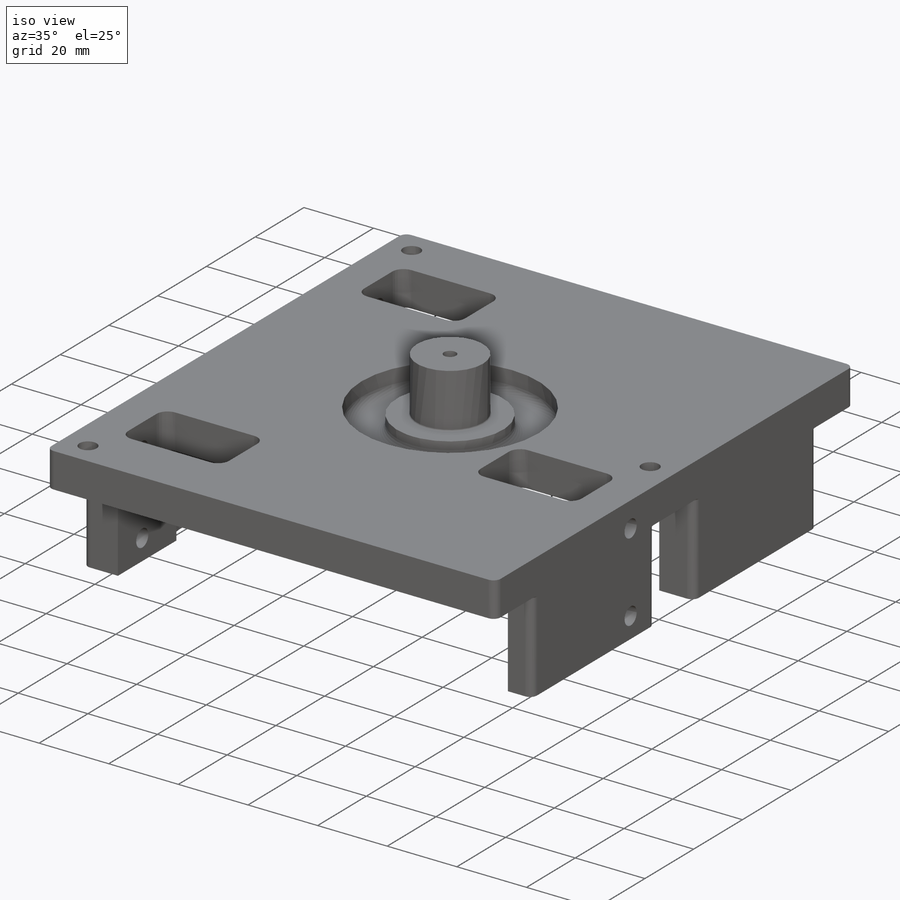
[diagram: iso view]
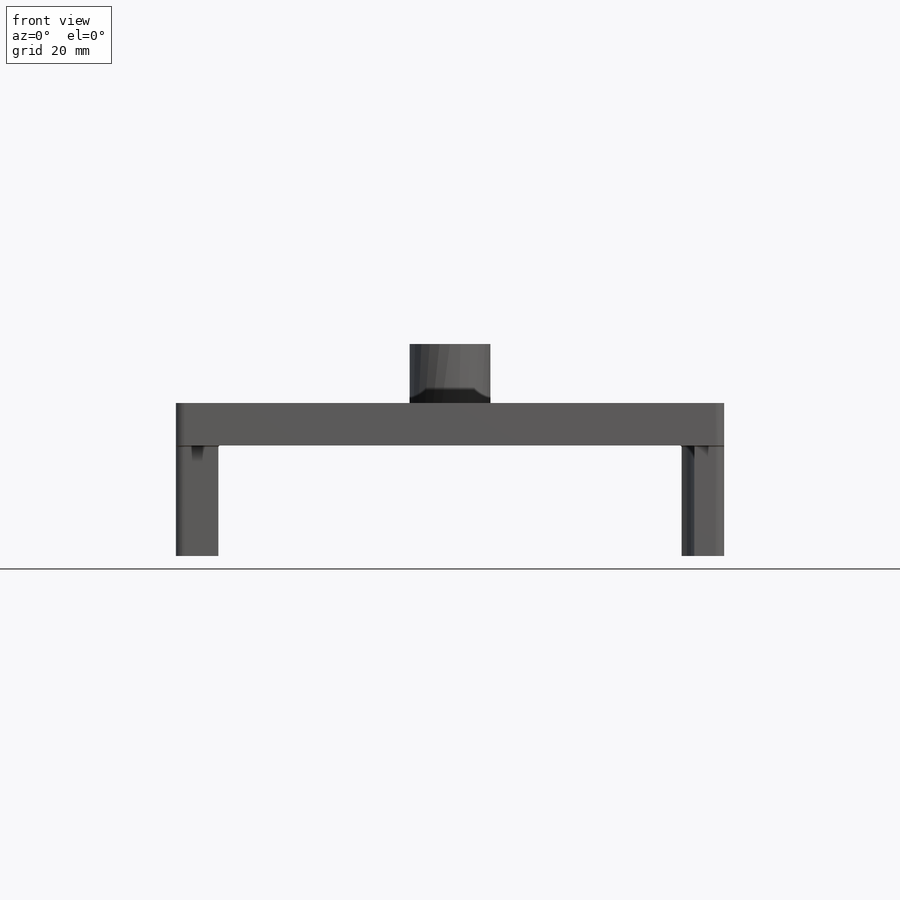
[diagram: front view]
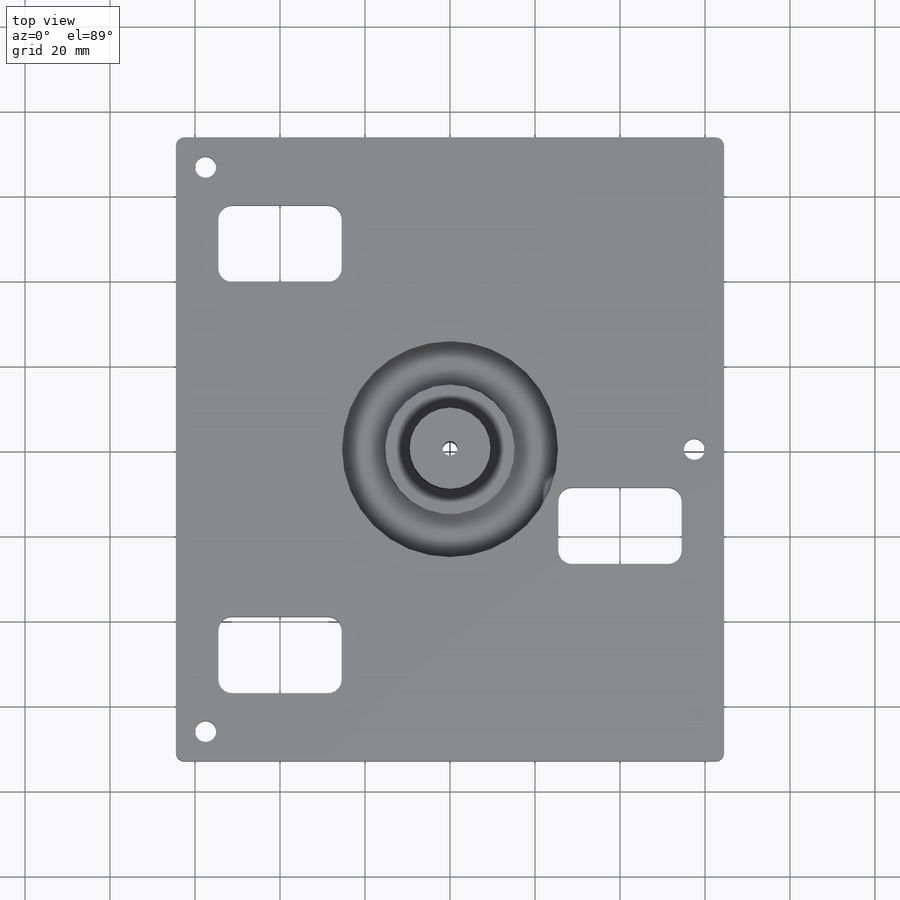
[diagram: top view]
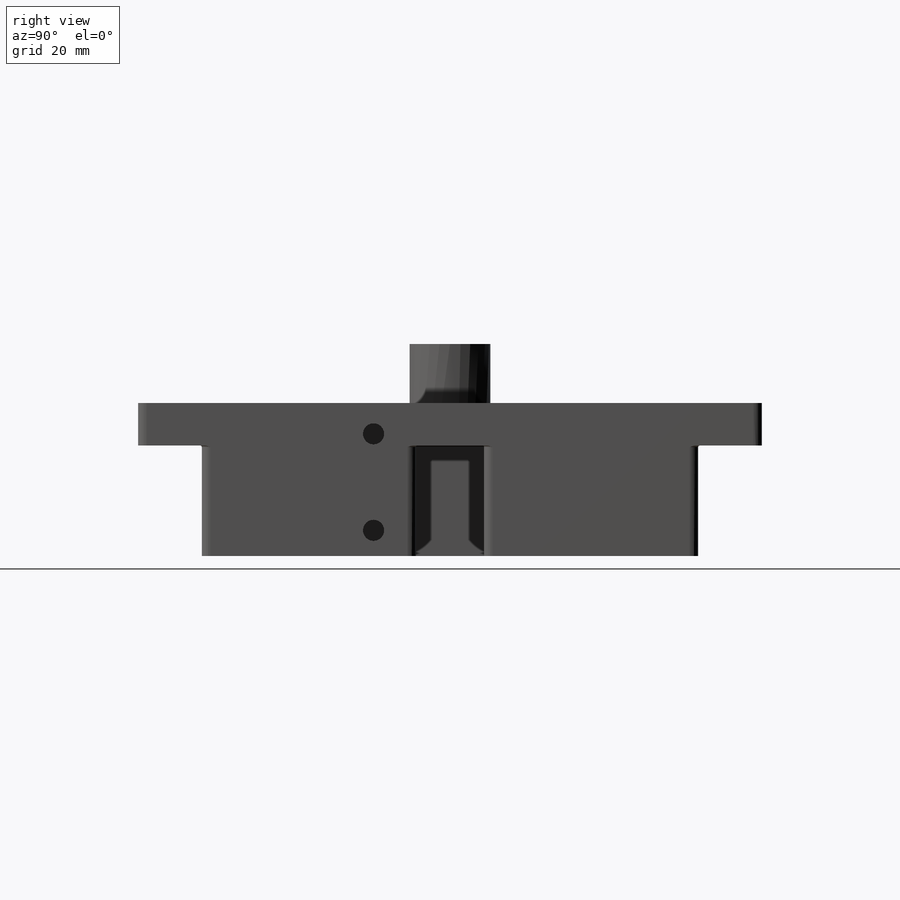
[diagram: right view]
SOLIDWORKS PART (.sldprt)
format: sldprt  version: not decoded by parser v0  size: 695,808 bytes
history: native  units: mm
features: sketch x18, fillet x6, extrude x4, hole x4, cut_extrude x3, material x1, thread x1 (+11 scaffold rows collapsed)
feature tree (48):
  scaffold x11  (default folders/planes/origin — collapsed)
  material  "6061-T6 (SS)"
  sketch  "Sketch1"  dims[D1=115.0mm D2=7.0mm D3=7.0mm]
  extrude  "Extrude1"  Depth=10mm
  sketch  "place holes"
  hole  "#10 Clearance Hole1"  Diameter=4.9784mm Depth=10mm
  sketch  "3DSketch2"
  sketch  "Sketch5"  dims[hole-wizard template sketch: 60 standard entries collapsed; hole parameters kept: c18.Thru Hole Depth=10.0mm]
  sketch  "Sketch2"  dims[D1=8.0mm D2=10.0mm D3=8.0mm D4=~47.323484mm]
  extrude  "Extrude2"  Depth=26mm
  sketch  "Sketch11"  dims[D1=10.0mm D2=18.0mm D3=10.0mm D4=29.0mm]
  cut_extrude  "Extrude3"  [1 undecoded]
  sketch  "side hole positions"  dims[D1=12.0mm D2=22.7mm D3=10.0mm]
  hole  "#10 Clearance Hole2"  Diameter=4.9784mm Depth=10mm
  sketch  "3DSketch3"
  sketch  "Sketch7"  dims[hole-wizard template sketch: 60 standard entries collapsed; hole parameters kept: c18.Thru Hole Depth=10.0mm]
  sketch  "more side postions"  dims[D1=10.0mm D2=22.7mm]
  hole  "#10 Clearance Hole3"  Diameter=4.9784mm Depth=10mm
  sketch  "3DSketch4"
  sketch  "Sketch9"  dims[hole-wizard template sketch: 60 standard entries collapsed; hole parameters kept: c18.Thru Hole Depth=10.0mm]
  fillet  "Fillet1"  Radius=3.175mm
  sketch  "Sketch12"  dims[D1=5.0mm D2=3.0mm D3=5.0mm]
  cut_extrude  "Extrude4"  [1 undecoded]
  fillet  "Fillet2"  Radius=6.35mm
  sketch  "Sketch19"  dims[D1=50.8mm]
  cut_extrude  "Cut-Extrude1"  Depth=3.429mm
  sketch  "Sketch13"  dims[D1=30.48mm]
  extrude  "Extrude5"  Depth=4.826mm
  sketch  "Sketch14"  dims[D1=19.0119mm]
  extrude  "Extrude6"  Depth=15.621mm
  hole  "#8-32 Tapped Hole1"  Diameter=3.4544mm Depth=49.876025mm
  sketch  "3DSketch7"
  sketch  "Sketch18"  dims[hole-wizard template sketch: 60 standard entries collapsed; hole parameters kept: c18.Thru Tap Drill Depth=~49.876025mm]
  thread  "Hole Thread1"  Diameter=4.1656mm  [1 undecoded]
  fillet  "Fillet5"  Radius=2mm
  fillet  "Fillet3"  Radius=0.39624mm
  fillet  "Fillet4"  Radius=0.39624mm
  fillet  "Fillet6"  Radius=2.54mm
decode coverage: 29 of 36 modeling features carry decoded parameters
note: ~ marks probable driven/reference dimensions
note: 3 parameter values undecoded
summary: Diameter pulled from absorbed wizard sketch
note: suppression state not decoded; provenance and decode notes live in map.json
